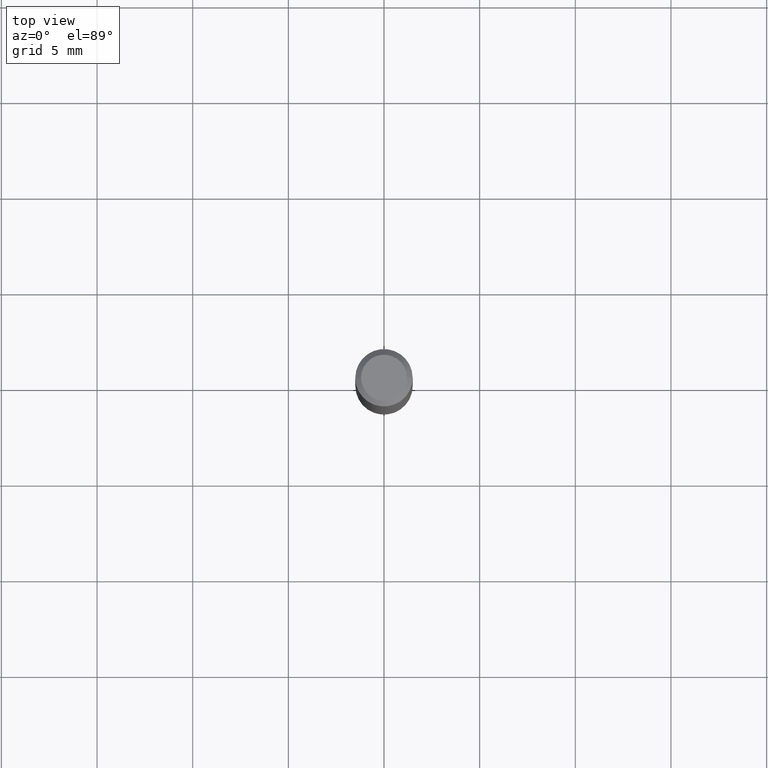
[diagram: clean part render]
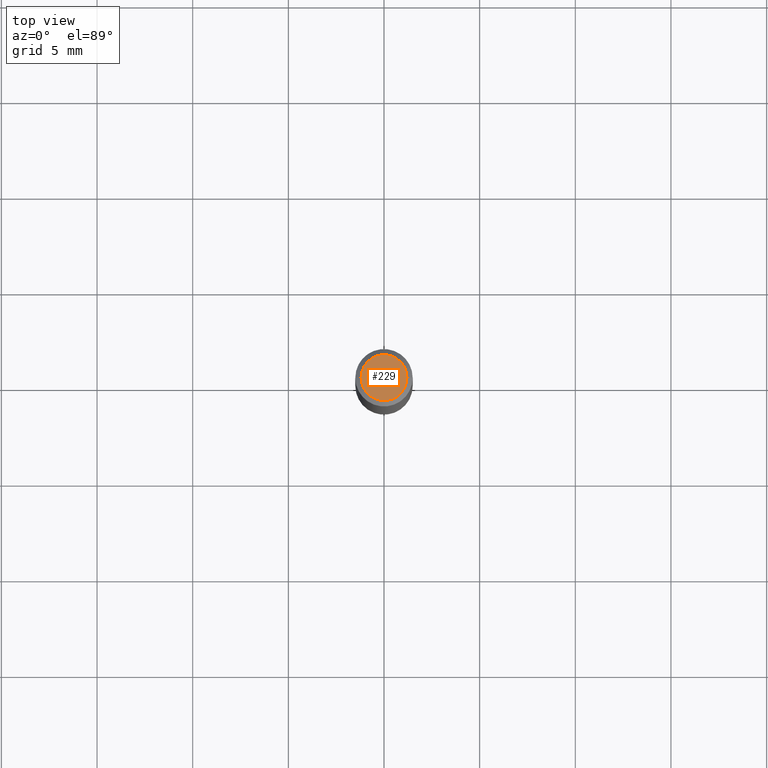
[diagram: same view with one face highlighted and labeled with its STEP entity id]
A machine part, top view. The second image highlights one B-rep face of the part: STEP entity #229.
In plain terms, the highlighted planar face has unit normal (0, -0, -1).
Its self-contained STEP definition (entity closure, byte-faithful):
#11 = ORIENTED_EDGE ( 'NONE', *, *, #15, .T. ) ;
#15 = EDGE_CURVE ( 'NONE', #265, #298, #51, .T. ) ;
#25 = FACE_OUTER_BOUND ( 'NONE', #356, .T. ) ;
#38 = DIRECTION ( 'NONE',  ( -2.445468806185136597E-29, 3.491481338843145583E-15, 1.000000000000000000 ) ) ;
#44 = CARTESIAN_POINT ( 'NONE',  ( 0.04724000000000000421, -3.852183633974369345E-16, -3.380025165621689721E-19 ) ) ;
#51 = CIRCLE ( 'NONE', #149, 0.04724000000000000421 ) ;
#99 = CARTESIAN_POINT ( 'NONE',  ( 8.265746106709734507E-48, -1.180129479067563789E-33, -3.380025165646692144E-19 ) ) ;
#138 = DIRECTION ( 'NONE',  ( 1.000000000000000000, -6.982962677686266711E-15, 4.876185090822587894E-29 ) ) ;
#149 = AXIS2_PLACEMENT_3D ( 'NONE', #432, #475, #430 ) ;
#152 = EDGE_CURVE ( 'NONE', #298, #265, #386, .T. ) ;
#188 = AXIS2_PLACEMENT_3D ( 'NONE', #99, #38, #138 ) ;
#205 = AXIS2_PLACEMENT_3D ( 'NONE', #481, #442, #483 ) ;
#222 = CARTESIAN_POINT ( 'NONE',  ( -0.04724000000000000421, 3.504923541997677355E-16, -3.380025165670481712E-19 ) ) ;
#229 = ADVANCED_FACE ( 'NONE', ( #25 ), #327, .F. ) ;
#265 = VERTEX_POINT ( 'NONE', #44 ) ;
#298 = VERTEX_POINT ( 'NONE', #222 ) ;
#300 = ORIENTED_EDGE ( 'NONE', *, *, #152, .T. ) ;
#327 = PLANE ( 'NONE',  #205 ) ;
#356 = EDGE_LOOP ( 'NONE', ( #300, #11 ) ) ;
#386 = CIRCLE ( 'NONE', #188, 0.04724000000000000421 ) ;
#430 = DIRECTION ( 'NONE',  ( 1.000000000000000000, -6.982962677686266711E-15, 4.876185090822587894E-29 ) ) ;
#432 = CARTESIAN_POINT ( 'NONE',  ( 8.265746106709734507E-48, -1.180129479067563789E-33, -3.380025165646692144E-19 ) ) ;
#442 = DIRECTION ( 'NONE',  ( 2.438088387897960049E-29, -3.491481338843145188E-15, -1.000000000000000000 ) ) ;
#475 = DIRECTION ( 'NONE',  ( -2.445468806185136597E-29, 3.491481338843145583E-15, 1.000000000000000000 ) ) ;
#481 = CARTESIAN_POINT ( 'NONE',  ( 4.132873053354867254E-48, -5.900647395337818946E-34, -1.690012582823346072E-19 ) ) ;
#483 = DIRECTION ( 'NONE',  ( -1.000000000000000000, 6.982962677686265922E-15, -4.876176775795935793E-29 ) ) ;